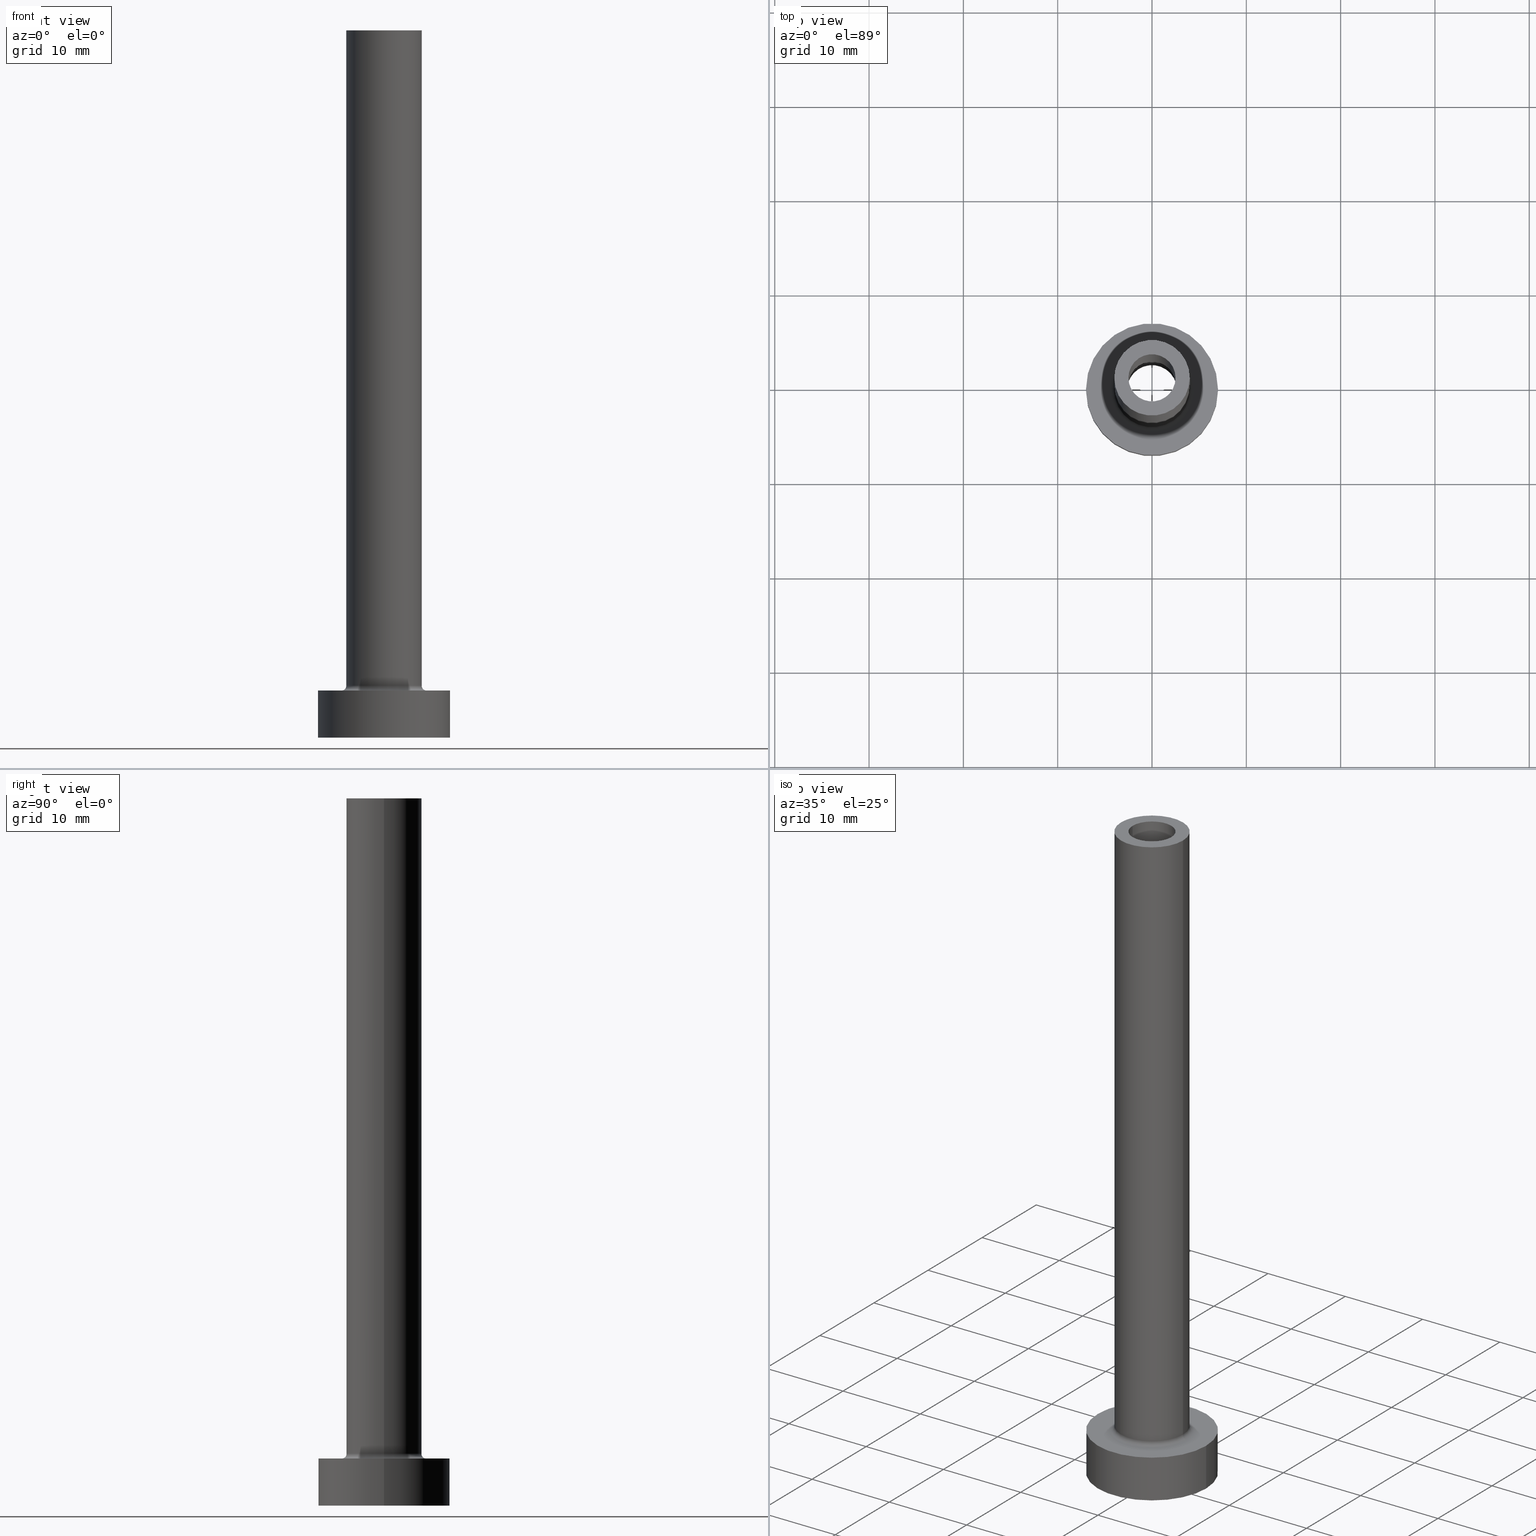
[diagram: canonical four-view strip — front | top / right | iso, engineering-drawing reading convention]
A machine part, canonical four-view strip (front | top / right | iso — engineering-drawing reading convention). The complete STEP part file that produces these views, byte-faithful:
ISO-10303-21;
HEADER;
FILE_DESCRIPTION (( 'STEP AP203' ),
    '1' );
FILE_NAME ('2fdc.STEP',
    '2023-02-13T10:14:26',
    ( '' ),
    ( '' ),
    'SwSTEP 2.0',
    'SolidWorks 2019',
    '' );
FILE_SCHEMA (( 'CONFIG_CONTROL_DESIGN' ));
ENDSEC;

DATA;
#1 = APPROVAL_DATE_TIME ( #292, #445 ) ;
#2 = CARTESIAN_POINT ( 'NONE',  ( 4.000000000000000000, 4.898587196589412829E-16, 75.00000000000001421 ) ) ;
#3 = CARTESIAN_POINT ( 'NONE',  ( 0.000000000000000000, 0.000000000000000000, 0.000000000000000000 ) ) ;
#4 = DIRECTION ( 'NONE',  ( -0.000000000000000000, -0.000000000000000000, -1.000000000000000000 ) ) ;
#5 = DIRECTION ( 'NONE',  ( 0.000000000000000000, 0.000000000000000000, 1.000000000000000000 ) ) ;
#6 = VECTOR ( 'NONE', #14, 1000.000000000000000 ) ;
#7 = APPROVAL_ROLE ( '' ) ;
#8 = ORIENTED_EDGE ( 'NONE', *, *, #117, .F. ) ;
#9 = CIRCLE ( 'NONE', #282, 2.649999999999999911 ) ;
#10 = CYLINDRICAL_SURFACE ( 'NONE', #87, 2.500000000000000000 ) ;
#11 = DIRECTION ( 'NONE',  ( 1.000000000000000000, 0.000000000000000000, -0.000000000000000000 ) ) ;
#12 = ORIENTED_EDGE ( 'NONE', *, *, #212, .F. ) ;
#13 = DIRECTION ( 'NONE',  ( 1.000000000000000000, 0.000000000000000000, 0.000000000000000000 ) ) ;
#14 = DIRECTION ( 'NONE',  ( -0.000000000000000000, -0.000000000000000000, -1.000000000000000000 ) ) ;
#15 = EDGE_LOOP ( 'NONE', ( #174, #214, #344, #30 ) ) ;
#16 = DATE_AND_TIME ( #101, #386 ) ;
#17 = EDGE_CURVE ( 'NONE', #210, #318, #207, .T. ) ;
#18 = AXIS2_PLACEMENT_3D ( 'NONE', #43, #296, #85 ) ;
#19 = DIRECTION ( 'NONE',  ( 1.000000000000000000, 0.000000000000000000, 0.000000000000000000 ) ) ;
#20 = ORIENTED_EDGE ( 'NONE', *, *, #270, .F. ) ;
#21 = PERSON_AND_ORGANIZATION ( #436, #255 ) ;
#22 = DIRECTION ( 'NONE',  ( 0.000000000000000000, 0.000000000000000000, -1.000000000000000000 ) ) ;
#23 = ORIENTED_EDGE ( 'NONE', *, *, #247, .T. ) ;
#24 = DATE_AND_TIME ( #381, #382 ) ;
#25 = CIRCLE ( 'NONE', #347, 0.5000000000000004441 ) ;
#26 = CIRCLE ( 'NONE', #73, 2.649999999999999911 ) ;
#27 = CARTESIAN_POINT ( 'NONE',  ( 0.000000000000000000, 0.000000000000000000, 5.500000000000005329 ) ) ;
#28 = ORIENTED_EDGE ( 'NONE', *, *, #183, .T. ) ;
#29 = LINE ( 'NONE', #424, #334 ) ;
#30 = ORIENTED_EDGE ( 'NONE', *, *, #257, .F. ) ;
#31 = EDGE_CURVE ( 'NONE', #287, #146, #232, .T. ) ;
#32 = CARTESIAN_POINT ( 'NONE',  ( 0.000000000000000000, 0.000000000000000000, 75.00000000000001421 ) ) ;
#33 = ADVANCED_FACE ( 'NONE', ( #94 ), #60, .T. ) ;
#34 = DIRECTION ( 'NONE',  ( -1.000000000000000000, 0.000000000000000000, 0.000000000000000000 ) ) ;
#35 = CALENDAR_DATE ( 2023, 13, 2 ) ;
#36 = CARTESIAN_POINT ( 'NONE',  ( 4.000000000000000000, 4.898587196589412829E-16, 5.500000000000005329 ) ) ;
#37 = DIRECTION ( 'NONE',  ( 1.000000000000000000, 0.000000000000000000, 0.000000000000000000 ) ) ;
#38 = CIRCLE ( 'NONE', #180, 2.649999999999999911 ) ;
#39 = DIRECTION ( 'NONE',  ( 0.000000000000000000, 0.000000000000000000, 1.000000000000000000 ) ) ;
#40 = DIRECTION ( 'NONE',  ( 1.000000000000000000, 0.000000000000000000, 0.000000000000000000 ) ) ;
#41 = DIRECTION ( 'NONE',  ( 1.000000000000000000, 0.000000000000000000, 0.000000000000000000 ) ) ;
#42 = CARTESIAN_POINT ( 'NONE',  ( 0.000000000000000000, 0.000000000000000000, 0.000000000000000000 ) ) ;
#43 = CARTESIAN_POINT ( 'NONE',  ( 0.000000000000000000, 0.000000000000000000, 5.000000000000000000 ) ) ;
#44 = CIRCLE ( 'NONE', #223, 4.000000000000000000 ) ;
#45 = EDGE_LOOP ( 'NONE', ( #294, #415 ) ) ;
#46 = DIRECTION ( 'NONE',  ( 1.000000000000000000, 0.000000000000000000, -0.000000000000000000 ) ) ;
#47 = APPROVAL_PERSON_ORGANIZATION ( #231, #182, #194 ) ;
#48 = SECURITY_CLASSIFICATION ( '', '', #428 ) ;
#49 = ORIENTED_EDGE ( 'NONE', *, *, #420, .F. ) ;
#50 = DIRECTION ( 'NONE',  ( 0.000000000000000000, 0.000000000000000000, 1.000000000000000000 ) ) ;
#51 = CC_DESIGN_PERSON_AND_ORGANIZATION_ASSIGNMENT ( #21, #345, ( #443 ) ) ;
#52 = AXIS2_PLACEMENT_3D ( 'NONE', #285, #425, #111 ) ;
#53 = LINE ( 'NONE', #452, #204 ) ;
#54 = VERTEX_POINT ( 'NONE', #58 ) ;
#55 = ADVANCED_BREP_SHAPE_REPRESENTATION ( '2fdc', ( #350, #115 ), #261 ) ;
#56 = TOROIDAL_SURFACE ( 'NONE', #135, 4.500000000000000888, 0.5000000000000000000 ) ;
#57 = DATE_AND_TIME ( #59, #175 ) ;
#58 = CARTESIAN_POINT ( 'NONE',  ( -7.000000000000000000, 0.000000000000000000, 5.000000000000000000 ) ) ;
#59 = CALENDAR_DATE ( 2023, 13, 2 ) ;
#60 = CYLINDRICAL_SURFACE ( 'NONE', #280, 7.000000000000000000 ) ;
#61 = DIRECTION ( 'NONE',  ( 0.000000000000000000, 0.000000000000000000, 1.000000000000000000 ) ) ;
#62 = DATE_TIME_ROLE ( 'creation_date' ) ;
#63 = EDGE_CURVE ( 'NONE', #304, #342, #195, .T. ) ;
#64 = EDGE_CURVE ( 'NONE', #447, #205, #103, .T. ) ;
#65 = AXIS2_PLACEMENT_3D ( 'NONE', #104, #69, #147 ) ;
#66 = VERTEX_POINT ( 'NONE', #387 ) ;
#67 = CARTESIAN_POINT ( 'NONE',  ( 0.000000000000000000, 0.000000000000000000, 5.000000000000000000 ) ) ;
#68 = ORIENTED_EDGE ( 'NONE', *, *, #251, .F. ) ;
#69 = DIRECTION ( 'NONE',  ( 0.000000000000000000, 0.000000000000000000, 1.000000000000000000 ) ) ;
#70 = AXIS2_PLACEMENT_3D ( 'NONE', #67, #109, #206 ) ;
#71 = ORIENTED_EDGE ( 'NONE', *, *, #402, .T. ) ;
#72 = CARTESIAN_POINT ( 'NONE',  ( -7.000000000000000000, 0.000000000000000000, 0.000000000000000000 ) ) ;
#73 = AXIS2_PLACEMENT_3D ( 'NONE', #3, #4, #79 ) ;
#74 = AXIS2_PLACEMENT_3D ( 'NONE', #80, #188, #40 ) ;
#75 = CARTESIAN_POINT ( 'NONE',  ( -2.649999999999999911, 0.000000000000000000, 37.49533188057742450 ) ) ;
#76 = ORIENTED_EDGE ( 'NONE', *, *, #370, .F. ) ;
#77 = CARTESIAN_POINT ( 'NONE',  ( 0.000000000000000000, 0.000000000000000000, 75.00000000000001421 ) ) ;
#78 = CARTESIAN_POINT ( 'NONE',  ( 7.000000000000000000, 8.572527594031473190E-16, 5.000000000000000000 ) ) ;
#79 = DIRECTION ( 'NONE',  ( 1.000000000000000000, 0.000000000000000000, 0.000000000000000000 ) ) ;
#80 = CARTESIAN_POINT ( 'NONE',  ( 0.000000000000000000, 0.000000000000000000, 5.000000000000000000 ) ) ;
#81 = AXIS2_PLACEMENT_3D ( 'NONE', #32, #404, #299 ) ;
#82 = LOCAL_TIME ( 11, 14, 26.00000000000000000, #124 ) ;
#83 = DIRECTION ( 'NONE',  ( -1.000000000000000000, 0.000000000000000000, 0.000000000000000000 ) ) ;
#84 = EDGE_CURVE ( 'NONE', #356, #193, #330, .T. ) ;
#85 = DIRECTION ( 'NONE',  ( 1.000000000000000000, 0.000000000000000000, 0.000000000000000000 ) ) ;
#86 = CARTESIAN_POINT ( 'NONE',  ( 0.000000000000000000, 0.000000000000000000, 5.000000000000000000 ) ) ;
#87 = AXIS2_PLACEMENT_3D ( 'NONE', #77, #365, #34 ) ;
#88 = DIRECTION ( 'NONE',  ( 0.000000000000000000, 0.000000000000000000, 1.000000000000000000 ) ) ;
#89 = ORIENTED_EDGE ( 'NONE', *, *, #273, .F. ) ;
#90 = PRODUCT_DEFINITION_FORMATION_WITH_SPECIFIED_SOURCE ( 'LIBOVOLN�', '', #443, .NOT_KNOWN. ) ;
#91 = EDGE_LOOP ( 'NONE', ( #113, #230, #128, #411 ) ) ;
#92 = APPROVAL_STATUS ( 'not_yet_approved' ) ;
#93 = CARTESIAN_POINT ( 'NONE',  ( 4.500000000000000888, 0.000000000000000000, 5.000000000000002665 ) ) ;
#94 = FACE_OUTER_BOUND ( 'NONE', #426, .T. ) ;
#95 = CARTESIAN_POINT ( 'NONE',  ( 0.000000000000000000, 0.000000000000000000, 5.000000000000000000 ) ) ;
#96 = COORDINATED_UNIVERSAL_TIME_OFFSET ( 1, 0, .AHEAD. ) ;
#97 = DIRECTION ( 'NONE',  ( -1.000000000000000000, 0.000000000000000000, 0.000000000000000000 ) ) ;
#98 = EDGE_CURVE ( 'NONE', #318, #210, #187, .T. ) ;
#99 = AXIS2_PLACEMENT_3D ( 'NONE', #181, #22, #269 ) ;
#100 = EDGE_LOOP ( 'NONE', ( #348, #71 ) ) ;
#101 = CALENDAR_DATE ( 2023, 13, 2 ) ;
#102 = ADVANCED_FACE ( 'NONE', ( #250, #392 ), #208, .T. ) ;
#103 = LINE ( 'NONE', #75, #275 ) ;
#104 = CARTESIAN_POINT ( 'NONE',  ( 0.000000000000000000, 0.000000000000000000, 0.000000000000000000 ) ) ;
#105 = ORIENTED_EDGE ( 'NONE', *, *, #129, .F. ) ;
#106 = CC_DESIGN_DATE_AND_TIME_ASSIGNMENT ( #265, #224, ( #48 ) ) ;
#107 = AXIS2_PLACEMENT_3D ( 'NONE', #235, #379, #391 ) ;
#108 = EDGE_CURVE ( 'NONE', #146, #239, #44, .T. ) ;
#109 = DIRECTION ( 'NONE',  ( -0.000000000000000000, -0.000000000000000000, -1.000000000000000000 ) ) ;
#110 = DIRECTION ( 'NONE',  ( 0.000000000000000000, 0.000000000000000000, -1.000000000000000000 ) ) ;
#111 = DIRECTION ( 'NONE',  ( 1.000000000000000000, 0.000000000000000000, 0.000000000000000000 ) ) ;
#112 = ORIENTED_EDGE ( 'NONE', *, *, #63, .F. ) ;
#113 = ORIENTED_EDGE ( 'NONE', *, *, #402, .F. ) ;
#114 = DIRECTION ( 'NONE',  ( 0.000000000000000000, 0.000000000000000000, 1.000000000000000000 ) ) ;
#115 = AXIS2_PLACEMENT_3D ( 'NONE', #410, #50, #19 ) ;
#116 = ADVANCED_FACE ( 'NONE', ( #176 ), #10, .F. ) ;
#117 = EDGE_CURVE ( 'NONE', #54, #236, #244, .T. ) ;
#118 = DIRECTION ( 'NONE',  ( 0.000000000000000000, 0.000000000000000000, 1.000000000000000000 ) ) ;
#119 = DIRECTION ( 'NONE',  ( 1.224646799147353207E-16, 1.000000000000000000, -0.000000000000000000 ) ) ;
#120 = COORDINATED_UNIVERSAL_TIME_OFFSET ( 1, 0, .AHEAD. ) ;
#121 = CIRCLE ( 'NONE', #140, 7.000000000000000000 ) ;
#122 = FACE_OUTER_BOUND ( 'NONE', #422, .T. ) ;
#123 =( NAMED_UNIT ( * ) SI_UNIT ( $, .STERADIAN. ) SOLID_ANGLE_UNIT ( ) );
#124 = COORDINATED_UNIVERSAL_TIME_OFFSET ( 1, 0, .AHEAD. ) ;
#125 = FACE_OUTER_BOUND ( 'NONE', #91, .T. ) ;
#126 = DIRECTION ( 'NONE',  ( 1.000000000000000000, 0.000000000000000000, -0.000000000000000000 ) ) ;
#127 = CARTESIAN_POINT ( 'NONE',  ( 7.000000000000000000, 8.572527594031473190E-16, 0.000000000000000000 ) ) ;
#128 = ORIENTED_EDGE ( 'NONE', *, *, #358, .T. ) ;
#129 = EDGE_CURVE ( 'NONE', #342, #210, #329, .T. ) ;
#130 = APPLICATION_PROTOCOL_DEFINITION ( 'international standard', 'config_control_design', 1994, #238 ) ;
#131 = CARTESIAN_POINT ( 'NONE',  ( 0.000000000000000000, 0.000000000000000000, 30.00000000000001421 ) ) ;
#132 = APPROVAL_ROLE ( '' ) ;
#133 = EDGE_CURVE ( 'NONE', #239, #193, #25, .T. ) ;
#134 = ADVANCED_FACE ( 'NONE', ( #434 ), #405, .F. ) ;
#135 = AXIS2_PLACEMENT_3D ( 'NONE', #173, #139, #283 ) ;
#136 = DIRECTION ( 'NONE',  ( -1.000000000000000000, 0.000000000000000000, 0.000000000000000000 ) ) ;
#137 = ORIENTED_EDGE ( 'NONE', *, *, #421, .F. ) ;
#138 = DIRECTION ( 'NONE',  ( 0.000000000000000000, 0.000000000000000000, -1.000000000000000000 ) ) ;
#139 = DIRECTION ( 'NONE',  ( 0.000000000000000000, 0.000000000000000000, 1.000000000000000000 ) ) ;
#140 = AXIS2_PLACEMENT_3D ( 'NONE', #211, #39, #221 ) ;
#141 = EDGE_LOOP ( 'NONE', ( #76, #378, #171, #390 ) ) ;
#142 = UNCERTAINTY_MEASURE_WITH_UNIT (LENGTH_MEASURE( 1.000000000000000082E-05 ), #401, 'distance_accuracy_value', 'NONE');
#143 = EDGE_LOOP ( 'NONE', ( #28, #302, #389, #314 ) ) ;
#144 = FACE_OUTER_BOUND ( 'NONE', #442, .T. ) ;
#145 = EDGE_LOOP ( 'NONE', ( #191, #263 ) ) ;
#146 = VERTEX_POINT ( 'NONE', #290 ) ;
#147 = DIRECTION ( 'NONE',  ( 1.000000000000000000, 0.000000000000000000, -0.000000000000000000 ) ) ;
#148 = EDGE_LOOP ( 'NONE', ( #248, #427, #268, #149 ) ) ;
#149 = ORIENTED_EDGE ( 'NONE', *, *, #84, .F. ) ;
#150 = DIRECTION ( 'NONE',  ( 0.000000000000000000, 0.000000000000000000, -1.000000000000000000 ) ) ;
#151 = CIRCLE ( 'NONE', #423, 2.500000000000000000 ) ;
#152 = CARTESIAN_POINT ( 'NONE',  ( 0.000000000000000000, 0.000000000000000000, 75.00000000000001421 ) ) ;
#153 = DIRECTION ( 'NONE',  ( -0.000000000000000000, -0.000000000000000000, -1.000000000000000000 ) ) ;
#154 = CARTESIAN_POINT ( 'NONE',  ( 4.500000000000000888, 0.000000000000000000, 5.500000000000005329 ) ) ;
#155 = ADVANCED_FACE ( 'NONE', ( #259 ), #398, .F. ) ;
#156 = DIRECTION ( 'NONE',  ( 0.000000000000000000, 0.000000000000000000, 1.000000000000000000 ) ) ;
#157 = PRODUCT_DEFINITION_SHAPE ( 'NONE', 'NONE',  #271 ) ;
#158 = DIRECTION ( 'NONE',  ( 0.000000000000000000, 0.000000000000000000, 1.000000000000000000 ) ) ;
#159 = DIRECTION ( 'NONE',  ( 1.000000000000000000, 0.000000000000000000, 0.000000000000000000 ) ) ;
#160 = CARTESIAN_POINT ( 'NONE',  ( -2.500000000000000000, 0.000000000000000000, 30.00000000000001421 ) ) ;
#161 = EDGE_LOOP ( 'NONE', ( #409, #23, #200, #397 ) ) ;
#162 = PERSON_AND_ORGANIZATION_ROLE ( 'creator' ) ;
#163 = CC_DESIGN_APPROVAL ( #182, ( #90 ) ) ;
#164 = APPROVAL_DATE_TIME ( #24, #351 ) ;
#165 = ORIENTED_EDGE ( 'NONE', *, *, #298, .T. ) ;
#166 = COORDINATED_UNIVERSAL_TIME_OFFSET ( 1, 0, .AHEAD. ) ;
#167 = ORIENTED_EDGE ( 'NONE', *, *, #183, .F. ) ;
#168 = CC_DESIGN_APPROVAL ( #351, ( #271 ) ) ;
#169 = DIRECTION ( 'NONE',  ( 1.000000000000000000, 0.000000000000000000, 0.000000000000000000 ) ) ;
#170 = PERSON_AND_ORGANIZATION_ROLE ( 'classification_officer' ) ;
#171 = ORIENTED_EDGE ( 'NONE', *, *, #64, .T. ) ;
#172 = AXIS2_PLACEMENT_3D ( 'NONE', #313, #241, #383 ) ;
#173 = CARTESIAN_POINT ( 'NONE',  ( 0.000000000000000000, 0.000000000000000000, 5.500000000000005329 ) ) ;
#174 = ORIENTED_EDGE ( 'NONE', *, *, #63, .T. ) ;
#175 = LOCAL_TIME ( 11, 14, 26.00000000000000000, #337 ) ;
#176 = FACE_OUTER_BOUND ( 'NONE', #438, .T. ) ;
#177 = EDGE_LOOP ( 'NONE', ( #49, #89 ) ) ;
#178 = CARTESIAN_POINT ( 'NONE',  ( -4.500000000000000888, 5.510910596163089556E-16, 5.500000000000005329 ) ) ;
#179 = DIRECTION ( 'NONE',  ( 1.000000000000000000, 0.000000000000000000, 0.000000000000000000 ) ) ;
#180 = AXIS2_PLACEMENT_3D ( 'NONE', #311, #308, #13 ) ;
#181 = CARTESIAN_POINT ( 'NONE',  ( 0.000000000000000000, 0.000000000000000000, 37.49533188057742450 ) ) ;
#182 = APPROVAL ( #92, 'NEUR�EN�' ) ;
#183 = EDGE_CURVE ( 'NONE', #447, #253, #38, .T. ) ;
#184 = LINE ( 'NONE', #327, #435 ) ;
#185 = CARTESIAN_POINT ( 'NONE',  ( 0.000000000000000000, 0.000000000000000000, 5.000000000000000000 ) ) ;
#186 = CARTESIAN_POINT ( 'NONE',  ( 0.000000000000000000, 0.000000000000000000, 0.000000000000000000 ) ) ;
#187 = CIRCLE ( 'NONE', #52, 2.500000000000000000 ) ;
#188 = DIRECTION ( 'NONE',  ( 0.000000000000000000, 0.000000000000000000, 1.000000000000000000 ) ) ;
#189 = AXIS2_PLACEMENT_3D ( 'NONE', #373, #156, #371 ) ;
#190 = PLANE ( 'NONE',  #198 ) ;
#191 = ORIENTED_EDGE ( 'NONE', *, *, #98, .T. ) ;
#192 = FACE_OUTER_BOUND ( 'NONE', #143, .T. ) ;
#193 = VERTEX_POINT ( 'NONE', #93 ) ;
#194 = APPROVAL_ROLE ( '' ) ;
#195 = CIRCLE ( 'NONE', #172, 2.500000000000000000 ) ;
#196 = DIRECTION ( 'NONE',  ( -0.000000000000000000, -0.000000000000000000, -1.000000000000000000 ) ) ;
#197 = VERTEX_POINT ( 'NONE', #127 ) ;
#198 = AXIS2_PLACEMENT_3D ( 'NONE', #131, #414, #11 ) ;
#199 = DIRECTION ( 'NONE',  ( -0.000000000000000000, -0.000000000000000000, -1.000000000000000000 ) ) ;
#200 = ORIENTED_EDGE ( 'NONE', *, *, #279, .F. ) ;
#201 = ORIENTED_EDGE ( 'NONE', *, *, #396, .F. ) ;
#202 = PERSON_AND_ORGANIZATION_ROLE ( 'creator' ) ;
#203 = APPROVAL_DATE_TIME ( #16, #182 ) ;
#204 = VECTOR ( 'NONE', #196, 1000.000000000000000 ) ;
#205 = VERTEX_POINT ( 'NONE', #388 ) ;
#206 = DIRECTION ( 'NONE',  ( 1.000000000000000000, 0.000000000000000000, 0.000000000000000000 ) ) ;
#207 = CIRCLE ( 'NONE', #301, 2.500000000000000000 ) ;
#208 = PLANE ( 'NONE',  #449 ) ;
#209 = AXIS2_PLACEMENT_3D ( 'NONE', #217, #114, #367 ) ;
#210 = VERTEX_POINT ( 'NONE', #286 ) ;
#211 = CARTESIAN_POINT ( 'NONE',  ( 0.000000000000000000, 0.000000000000000000, 0.000000000000000000 ) ) ;
#212 = EDGE_CURVE ( 'NONE', #342, #304, #151, .T. ) ;
#213 = CARTESIAN_POINT ( 'NONE',  ( 2.500000000000000000, 3.061616997868382648E-16, 75.00000000000001421 ) ) ;
#214 = ORIENTED_EDGE ( 'NONE', *, *, #129, .T. ) ;
#215 = DIRECTION ( 'NONE',  ( -0.000000000000000000, -0.000000000000000000, -1.000000000000000000 ) ) ;
#216 = CARTESIAN_POINT ( 'NONE',  ( 0.000000000000000000, 0.000000000000000000, 5.500000000000005329 ) ) ;
#217 = CARTESIAN_POINT ( 'NONE',  ( 0.000000000000000000, 0.000000000000000000, 75.00000000000001421 ) ) ;
#218 = CIRCLE ( 'NONE', #209, 4.000000000000000000 ) ;
#219 = PERSON_AND_ORGANIZATION ( #436, #255 ) ;
#220 = ORIENTED_EDGE ( 'NONE', *, *, #234, .T. ) ;
#221 = DIRECTION ( 'NONE',  ( 1.000000000000000000, 0.000000000000000000, 0.000000000000000000 ) ) ;
#222 = APPROVAL_STATUS ( 'not_yet_approved' ) ;
#223 = AXIS2_PLACEMENT_3D ( 'NONE', #372, #368, #41 ) ;
#224 = DATE_TIME_ROLE ( 'classification_date' ) ;
#225 = CARTESIAN_POINT ( 'NONE',  ( -2.500000000000000000, 0.000000000000000000, 75.00000000000001421 ) ) ;
#226 = VERTEX_POINT ( 'NONE', #2 ) ;
#227 = VECTOR ( 'NONE', #361, 1000.000000000000000 ) ;
#228 = AXIS2_PLACEMENT_3D ( 'NONE', #95, #267, #407 ) ;
#229 = FACE_OUTER_BOUND ( 'NONE', #338, .T. ) ;
#230 = ORIENTED_EDGE ( 'NONE', *, *, #254, .T. ) ;
#231 = PERSON_AND_ORGANIZATION ( #436, #255 ) ;
#232 = LINE ( 'NONE', #412, #6 ) ;
#233 = CC_DESIGN_PERSON_AND_ORGANIZATION_ASSIGNMENT ( #307, #162, ( #90 ) ) ;
#234 = EDGE_CURVE ( 'NONE', #197, #354, #303, .T. ) ;
#235 = CARTESIAN_POINT ( 'NONE',  ( 0.000000000000000000, 0.000000000000000000, 37.49533188057742450 ) ) ;
#236 = VERTEX_POINT ( 'NONE', #78 ) ;
#237 = CIRCLE ( 'NONE', #189, 4.000000000000000000 ) ;
#238 = APPLICATION_CONTEXT ( 'configuration controlled 3d designs of mechanical parts and assemblies' ) ;
#239 = VERTEX_POINT ( 'NONE', #36 ) ;
#240 = PERSON_AND_ORGANIZATION ( #436, #255 ) ;
#241 = DIRECTION ( 'NONE',  ( 0.000000000000000000, 0.000000000000000000, 1.000000000000000000 ) ) ;
#242 = CC_DESIGN_PERSON_AND_ORGANIZATION_ASSIGNMENT ( #317, #170, ( #48 ) ) ;
#243 = DIRECTION ( 'NONE',  ( 1.000000000000000000, 0.000000000000000000, 0.000000000000000000 ) ) ;
#244 = CIRCLE ( 'NONE', #288, 7.000000000000000000 ) ;
#245 = CIRCLE ( 'NONE', #460, 2.649999999999999911 ) ;
#246 = FACE_BOUND ( 'NONE', #177, .T. ) ;
#247 = EDGE_CURVE ( 'NONE', #146, #356, #441, .T. ) ;
#248 = ORIENTED_EDGE ( 'NONE', *, *, #247, .F. ) ;
#249 = CARTESIAN_POINT ( 'NONE',  ( 0.000000000000000000, 0.000000000000000000, 75.00000000000001421 ) ) ;
#250 = FACE_BOUND ( 'NONE', #416, .T. ) ;
#251 = EDGE_CURVE ( 'NONE', #253, #447, #245, .T. ) ;
#252 = PLANE ( 'NONE',  #65 ) ;
#253 = VERTEX_POINT ( 'NONE', #258 ) ;
#254 = EDGE_CURVE ( 'NONE', #226, #239, #359, .T. ) ;
#255 = ORGANIZATION ( 'NEUR�EN�', 'NEUR�EN�', '' ) ;
#256 = LINE ( 'NONE', #295, #394 ) ;
#257 = EDGE_CURVE ( 'NONE', #304, #318, #184, .T. ) ;
#258 = CARTESIAN_POINT ( 'NONE',  ( 2.649999999999999911, 3.245314017740485469E-16, 30.00000000000001421 ) ) ;
#259 = FACE_OUTER_BOUND ( 'NONE', #141, .T. ) ;
#260 = DIRECTION ( 'NONE',  ( 0.000000000000000000, 0.000000000000000000, -1.000000000000000000 ) ) ;
#261 =( GEOMETRIC_REPRESENTATION_CONTEXT ( 3 ) GLOBAL_UNCERTAINTY_ASSIGNED_CONTEXT ( ( #142 ) ) GLOBAL_UNIT_ASSIGNED_CONTEXT ( ( #401, #433, #123 ) ) REPRESENTATION_CONTEXT ( 'NONE', 'WORKASPACE' ) );
#262 = LOCAL_TIME ( 11, 14, 26.00000000000000000, #120 ) ;
#263 = ORIENTED_EDGE ( 'NONE', *, *, #17, .T. ) ;
#264 = CYLINDRICAL_SURFACE ( 'NONE', #81, 4.000000000000000000 ) ;
#265 = DATE_AND_TIME ( #363, #82 ) ;
#266 = CYLINDRICAL_SURFACE ( 'NONE', #375, 4.000000000000000000 ) ;
#267 = DIRECTION ( 'NONE',  ( -0.000000000000000000, -0.000000000000000000, -1.000000000000000000 ) ) ;
#268 = ORIENTED_EDGE ( 'NONE', *, *, #133, .T. ) ;
#269 = DIRECTION ( 'NONE',  ( -1.000000000000000000, 0.000000000000000000, 0.000000000000000000 ) ) ;
#270 = EDGE_CURVE ( 'NONE', #287, #226, #237, .T. ) ;
#271 = PRODUCT_DEFINITION ( 'NEZN�M�', '', #90, #456 ) ;
#272 = ORIENTED_EDGE ( 'NONE', *, *, #458, .T. ) ;
#273 = EDGE_CURVE ( 'NONE', #66, #205, #26, .T. ) ;
#274 = ORIENTED_EDGE ( 'NONE', *, *, #257, .T. ) ;
#275 = VECTOR ( 'NONE', #138, 1000.000000000000000 ) ;
#276 = ORIENTED_EDGE ( 'NONE', *, *, #31, .T. ) ;
#277 = AXIS2_PLACEMENT_3D ( 'NONE', #216, #118, #37 ) ;
#278 = AXIS2_PLACEMENT_3D ( 'NONE', #27, #61, #169 ) ;
#279 = EDGE_CURVE ( 'NONE', #193, #356, #312, .T. ) ;
#280 = AXIS2_PLACEMENT_3D ( 'NONE', #448, #440, #97 ) ;
#281 = ADVANCED_FACE ( 'NONE', ( #122 ), #264, .T. ) ;
#282 = AXIS2_PLACEMENT_3D ( 'NONE', #186, #153, #403 ) ;
#283 = DIRECTION ( 'NONE',  ( 1.000000000000000000, 0.000000000000000000, 0.000000000000000000 ) ) ;
#284 = ADVANCED_FACE ( 'NONE', ( #125 ), #266, .T. ) ;
#285 = CARTESIAN_POINT ( 'NONE',  ( 0.000000000000000000, 0.000000000000000000, 30.00000000000001421 ) ) ;
#286 = CARTESIAN_POINT ( 'NONE',  ( 2.500000000000000000, 3.061616997868382648E-16, 30.00000000000001421 ) ) ;
#287 = VERTEX_POINT ( 'NONE', #309 ) ;
#288 = AXIS2_PLACEMENT_3D ( 'NONE', #185, #5, #332 ) ;
#289 = EDGE_LOOP ( 'NONE', ( #167, #68 ) ) ;
#290 = CARTESIAN_POINT ( 'NONE',  ( -4.000000000000000000, 0.000000000000000000, 5.500000000000005329 ) ) ;
#291 = FACE_OUTER_BOUND ( 'NONE', #300, .T. ) ;
#292 = DATE_AND_TIME ( #35, #262 ) ;
#293 = DIRECTION ( 'NONE',  ( 0.000000000000000000, 0.000000000000000000, -1.000000000000000000 ) ) ;
#294 = ORIENTED_EDGE ( 'NONE', *, *, #279, .T. ) ;
#295 = CARTESIAN_POINT ( 'NONE',  ( -7.000000000000000000, 0.000000000000000000, 5.000000000000000000 ) ) ;
#296 = DIRECTION ( 'NONE',  ( -0.000000000000000000, -0.000000000000000000, -1.000000000000000000 ) ) ;
#297 = DIRECTION ( 'NONE',  ( 0.000000000000000000, 0.000000000000000000, 1.000000000000000000 ) ) ;
#298 = EDGE_CURVE ( 'NONE', #236, #197, #53, .T. ) ;
#299 = DIRECTION ( 'NONE',  ( -1.000000000000000000, 0.000000000000000000, 0.000000000000000000 ) ) ;
#300 = EDGE_LOOP ( 'NONE', ( #457, #272 ) ) ;
#301 = AXIS2_PLACEMENT_3D ( 'NONE', #376, #88, #159 ) ;
#302 = ORIENTED_EDGE ( 'NONE', *, *, #370, .T. ) ;
#303 = CIRCLE ( 'NONE', #355, 7.000000000000000000 ) ;
#304 = VERTEX_POINT ( 'NONE', #225 ) ;
#305 = FACE_OUTER_BOUND ( 'NONE', #289, .T. ) ;
#306 = ORIENTED_EDGE ( 'NONE', *, *, #212, .T. ) ;
#307 = PERSON_AND_ORGANIZATION ( #436, #255 ) ;
#308 = DIRECTION ( 'NONE',  ( 0.000000000000000000, 0.000000000000000000, 1.000000000000000000 ) ) ;
#309 = CARTESIAN_POINT ( 'NONE',  ( -4.000000000000000000, 0.000000000000000000, 75.00000000000001421 ) ) ;
#310 = ORIENTED_EDGE ( 'NONE', *, *, #421, .T. ) ;
#311 = CARTESIAN_POINT ( 'NONE',  ( 0.000000000000000000, 0.000000000000000000, 30.00000000000001421 ) ) ;
#312 = CIRCLE ( 'NONE', #18, 4.500000000000000888 ) ;
#313 = CARTESIAN_POINT ( 'NONE',  ( 0.000000000000000000, 0.000000000000000000, 75.00000000000001421 ) ) ;
#314 = ORIENTED_EDGE ( 'NONE', *, *, #64, .F. ) ;
#315 = FACE_OUTER_BOUND ( 'NONE', #161, .T. ) ;
#316 = ADVANCED_FACE ( 'NONE', ( #446, #305 ), #190, .F. ) ;
#317 = PERSON_AND_ORGANIZATION ( #436, #255 ) ;
#318 = VERTEX_POINT ( 'NONE', #160 ) ;
#319 = CIRCLE ( 'NONE', #278, 4.000000000000000000 ) ;
#320 = ORIENTED_EDGE ( 'NONE', *, *, #234, .F. ) ;
#321 = ORIENTED_EDGE ( 'NONE', *, *, #254, .F. ) ;
#322 = CC_DESIGN_PERSON_AND_ORGANIZATION_ASSIGNMENT ( #240, #346, ( #90 ) ) ;
#323 = DIRECTION ( 'NONE',  ( 0.000000000000000000, 0.000000000000000000, 1.000000000000000000 ) ) ;
#324 = DIRECTION ( 'NONE',  ( 0.000000000000000000, -1.000000000000000000, 0.000000000000000000 ) ) ;
#325 = CYLINDRICAL_SURFACE ( 'NONE', #417, 2.500000000000000000 ) ;
#326 = CC_DESIGN_SECURITY_CLASSIFICATION ( #48, ( #90 ) ) ;
#327 = CARTESIAN_POINT ( 'NONE',  ( -2.500000000000000000, 0.000000000000000000, 75.00000000000001421 ) ) ;
#328 = ADVANCED_FACE ( 'NONE', ( #229 ), #437, .T. ) ;
#329 = LINE ( 'NONE', #213, #227 ) ;
#330 = CIRCLE ( 'NONE', #70, 4.500000000000000888 ) ;
#331 = ADVANCED_FACE ( 'NONE', ( #192 ), #336, .F. ) ;
#332 = DIRECTION ( 'NONE',  ( 1.000000000000000000, 0.000000000000000000, 0.000000000000000000 ) ) ;
#333 = FACE_BOUND ( 'NONE', #45, .T. ) ;
#334 = VECTOR ( 'NONE', #110, 1000.000000000000000 ) ;
#335 = DIRECTION ( 'NONE',  ( -0.000000000000000000, -0.000000000000000000, -1.000000000000000000 ) ) ;
#336 = CYLINDRICAL_SURFACE ( 'NONE', #107, 2.649999999999999911 ) ;
#337 = COORDINATED_UNIVERSAL_TIME_OFFSET ( 1, 0, .AHEAD. ) ;
#338 = EDGE_LOOP ( 'NONE', ( #455, #165, #220, #201 ) ) ;
#339 = APPLICATION_PROTOCOL_DEFINITION ( 'international standard', 'config_control_design', 1994, #341 ) ;
#340 = AXIS2_PLACEMENT_3D ( 'NONE', #86, #297, #126 ) ;
#341 = APPLICATION_CONTEXT ( 'configuration controlled 3d designs of mechanical parts and assemblies' ) ;
#342 = VERTEX_POINT ( 'NONE', #384 ) ;
#343 = MECHANICAL_CONTEXT ( 'NONE', #238, 'mechanical' ) ;
#344 = ORIENTED_EDGE ( 'NONE', *, *, #98, .F. ) ;
#345 = PERSON_AND_ORGANIZATION_ROLE ( 'design_owner' ) ;
#346 = PERSON_AND_ORGANIZATION_ROLE ( 'design_supplier' ) ;
#347 = AXIS2_PLACEMENT_3D ( 'NONE', #154, #324, #293 ) ;
#348 = ORIENTED_EDGE ( 'NONE', *, *, #270, .T. ) ;
#349 = AXIS2_PLACEMENT_3D ( 'NONE', #178, #119, #364 ) ;
#350 = MANIFOLD_SOLID_BREP ( 'Odebrat vysunut�m4', #413 ) ;
#351 = APPROVAL ( #439, 'NEUR�EN�' ) ;
#352 = ADVANCED_FACE ( 'NONE', ( #246, #144 ), #252, .F. ) ;
#353 = CARTESIAN_POINT ( 'NONE',  ( 0.000000000000000000, 0.000000000000000000, 75.00000000000001421 ) ) ;
#354 = VERTEX_POINT ( 'NONE', #72 ) ;
#355 = AXIS2_PLACEMENT_3D ( 'NONE', #42, #323, #429 ) ;
#356 = VERTEX_POINT ( 'NONE', #418 ) ;
#357 = ORIENTED_EDGE ( 'NONE', *, *, #396, .T. ) ;
#358 = EDGE_CURVE ( 'NONE', #239, #146, #319, .T. ) ;
#359 = LINE ( 'NONE', #400, #406 ) ;
#360 = ADVANCED_FACE ( 'NONE', ( #315 ), #56, .F. ) ;
#361 = DIRECTION ( 'NONE',  ( 0.000000000000000000, 0.000000000000000000, -1.000000000000000000 ) ) ;
#362 = FACE_OUTER_BOUND ( 'NONE', #15, .T. ) ;
#363 = CALENDAR_DATE ( 2023, 13, 2 ) ;
#364 = DIRECTION ( 'NONE',  ( -1.000000000000000000, 1.224646799147351482E-16, 0.000000000000000000 ) ) ;
#365 = DIRECTION ( 'NONE',  ( 0.000000000000000000, 0.000000000000000000, -1.000000000000000000 ) ) ;
#366 = APPROVAL_PERSON_ORGANIZATION ( #451, #351, #132 ) ;
#367 = DIRECTION ( 'NONE',  ( 1.000000000000000000, 0.000000000000000000, 0.000000000000000000 ) ) ;
#368 = DIRECTION ( 'NONE',  ( 0.000000000000000000, 0.000000000000000000, 1.000000000000000000 ) ) ;
#369 = PRODUCT_RELATED_PRODUCT_CATEGORY ( 'detail', '', ( #443 ) ) ;
#370 = EDGE_CURVE ( 'NONE', #253, #66, #29, .T. ) ;
#371 = DIRECTION ( 'NONE',  ( 1.000000000000000000, 0.000000000000000000, 0.000000000000000000 ) ) ;
#372 = CARTESIAN_POINT ( 'NONE',  ( 0.000000000000000000, 0.000000000000000000, 5.500000000000005329 ) ) ;
#373 = CARTESIAN_POINT ( 'NONE',  ( 0.000000000000000000, 0.000000000000000000, 75.00000000000001421 ) ) ;
#374 = ADVANCED_FACE ( 'NONE', ( #362 ), #325, .F. ) ;
#375 = AXIS2_PLACEMENT_3D ( 'NONE', #377, #199, #136 ) ;
#376 = CARTESIAN_POINT ( 'NONE',  ( 0.000000000000000000, 0.000000000000000000, 30.00000000000001421 ) ) ;
#377 = CARTESIAN_POINT ( 'NONE',  ( 0.000000000000000000, 0.000000000000000000, 75.00000000000001421 ) ) ;
#378 = ORIENTED_EDGE ( 'NONE', *, *, #251, .T. ) ;
#379 = DIRECTION ( 'NONE',  ( 0.000000000000000000, 0.000000000000000000, -1.000000000000000000 ) ) ;
#380 = ORIENTED_EDGE ( 'NONE', *, *, #17, .F. ) ;
#381 = CALENDAR_DATE ( 2023, 13, 2 ) ;
#382 = LOCAL_TIME ( 11, 14, 26.00000000000000000, #96 ) ;
#383 = DIRECTION ( 'NONE',  ( 1.000000000000000000, 0.000000000000000000, 0.000000000000000000 ) ) ;
#384 = CARTESIAN_POINT ( 'NONE',  ( 2.500000000000000000, 3.061616997868382648E-16, 75.00000000000001421 ) ) ;
#385 = PERSON_AND_ORGANIZATION ( #436, #255 ) ;
#386 = LOCAL_TIME ( 11, 14, 26.00000000000000000, #166 ) ;
#387 = CARTESIAN_POINT ( 'NONE',  ( 2.649999999999999911, 3.245314017740485469E-16, 0.000000000000000000 ) ) ;
#388 = CARTESIAN_POINT ( 'NONE',  ( -2.649999999999999911, 0.000000000000000000, 0.000000000000000000 ) ) ;
#389 = ORIENTED_EDGE ( 'NONE', *, *, #273, .T. ) ;
#390 = ORIENTED_EDGE ( 'NONE', *, *, #420, .T. ) ;
#391 = DIRECTION ( 'NONE',  ( -1.000000000000000000, 0.000000000000000000, 0.000000000000000000 ) ) ;
#392 = FACE_OUTER_BOUND ( 'NONE', #100, .T. ) ;
#393 = ORIENTED_EDGE ( 'NONE', *, *, #298, .F. ) ;
#394 = VECTOR ( 'NONE', #215, 1000.000000000000000 ) ;
#395 = CC_DESIGN_DATE_AND_TIME_ASSIGNMENT ( #57, #62, ( #271 ) ) ;
#396 = EDGE_CURVE ( 'NONE', #54, #354, #256, .T. ) ;
#397 = ORIENTED_EDGE ( 'NONE', *, *, #133, .F. ) ;
#398 = CYLINDRICAL_SURFACE ( 'NONE', #99, 2.649999999999999911 ) ;
#399 = SHAPE_DEFINITION_REPRESENTATION ( #157, #55 ) ;
#400 = CARTESIAN_POINT ( 'NONE',  ( 4.000000000000000000, 4.898587196589412829E-16, 75.00000000000001421 ) ) ;
#401 =( LENGTH_UNIT ( ) NAMED_UNIT ( * ) SI_UNIT ( .MILLI., .METRE. ) );
#402 = EDGE_CURVE ( 'NONE', #226, #287, #218, .T. ) ;
#403 = DIRECTION ( 'NONE',  ( 1.000000000000000000, 0.000000000000000000, 0.000000000000000000 ) ) ;
#404 = DIRECTION ( 'NONE',  ( -0.000000000000000000, -0.000000000000000000, -1.000000000000000000 ) ) ;
#405 = TOROIDAL_SURFACE ( 'NONE', #277, 4.500000000000000888, 0.5000000000000000000 ) ;
#406 = VECTOR ( 'NONE', #335, 1000.000000000000000 ) ;
#407 = DIRECTION ( 'NONE',  ( -1.000000000000000000, 0.000000000000000000, 0.000000000000000000 ) ) ;
#408 = CC_DESIGN_APPROVAL ( #445, ( #48 ) ) ;
#409 = ORIENTED_EDGE ( 'NONE', *, *, #108, .F. ) ;
#410 = CARTESIAN_POINT ( 'NONE',  ( 0.000000000000000000, 0.000000000000000000, 0.000000000000000000 ) ) ;
#411 = ORIENTED_EDGE ( 'NONE', *, *, #31, .F. ) ;
#412 = CARTESIAN_POINT ( 'NONE',  ( -4.000000000000000000, 0.000000000000000000, 75.00000000000001421 ) ) ;
#413 = CLOSED_SHELL ( 'NONE', ( #374, #331, #360, #284, #328, #33, #444, #352, #281, #102, #134, #155, #316, #116 ) ) ;
#414 = DIRECTION ( 'NONE',  ( 0.000000000000000000, 0.000000000000000000, 1.000000000000000000 ) ) ;
#415 = ORIENTED_EDGE ( 'NONE', *, *, #84, .T. ) ;
#416 = EDGE_LOOP ( 'NONE', ( #112, #12 ) ) ;
#417 = AXIS2_PLACEMENT_3D ( 'NONE', #152, #150, #83 ) ;
#418 = CARTESIAN_POINT ( 'NONE',  ( -4.500000000000000888, 5.510910596163088569E-16, 5.000000000000002665 ) ) ;
#419 = DIRECTION ( 'NONE',  ( 0.000000000000000000, 0.000000000000000000, 1.000000000000000000 ) ) ;
#420 = EDGE_CURVE ( 'NONE', #205, #66, #9, .T. ) ;
#421 = EDGE_CURVE ( 'NONE', #354, #197, #121, .T. ) ;
#422 = EDGE_LOOP ( 'NONE', ( #321, #20, #276, #450 ) ) ;
#423 = AXIS2_PLACEMENT_3D ( 'NONE', #249, #419, #243 ) ;
#424 = CARTESIAN_POINT ( 'NONE',  ( 2.649999999999999911, 3.245314017740485469E-16, 37.49533188057742450 ) ) ;
#425 = DIRECTION ( 'NONE',  ( 0.000000000000000000, 0.000000000000000000, 1.000000000000000000 ) ) ;
#426 = EDGE_LOOP ( 'NONE', ( #393, #8, #357, #310 ) ) ;
#427 = ORIENTED_EDGE ( 'NONE', *, *, #358, .F. ) ;
#428 = SECURITY_CLASSIFICATION_LEVEL ( 'unclassified' ) ;
#429 = DIRECTION ( 'NONE',  ( 1.000000000000000000, 0.000000000000000000, 0.000000000000000000 ) ) ;
#430 = CARTESIAN_POINT ( 'NONE',  ( 0.000000000000000000, 0.000000000000000000, 30.00000000000001421 ) ) ;
#431 = CARTESIAN_POINT ( 'NONE',  ( -2.649999999999999911, 0.000000000000000000, 30.00000000000001421 ) ) ;
#432 = PLANE ( 'NONE',  #340 ) ;
#433 =( NAMED_UNIT ( * ) PLANE_ANGLE_UNIT ( ) SI_UNIT ( $, .RADIAN. ) );
#434 = FACE_OUTER_BOUND ( 'NONE', #148, .T. ) ;
#435 = VECTOR ( 'NONE', #260, 1000.000000000000000 ) ;
#436 = PERSON ( 'NEUR�EN�', 'NEUR�EN�', 'NEUR�EN�', ('NEUR�EN�'), ('NEUR�EN�'), ('NEUR�EN�') ) ;
#437 = CYLINDRICAL_SURFACE ( 'NONE', #228, 7.000000000000000000 ) ;
#438 = EDGE_LOOP ( 'NONE', ( #105, #306, #274, #380 ) ) ;
#439 = APPROVAL_STATUS ( 'not_yet_approved' ) ;
#440 = DIRECTION ( 'NONE',  ( -0.000000000000000000, -0.000000000000000000, -1.000000000000000000 ) ) ;
#441 = CIRCLE ( 'NONE', #349, 0.5000000000000004441 ) ;
#442 = EDGE_LOOP ( 'NONE', ( #137, #320 ) ) ;
#443 = PRODUCT ( '2fdc', '2fdc', '', ( #343 ) ) ;
#444 = ADVANCED_FACE ( 'NONE', ( #333, #291 ), #432, .T. ) ;
#445 = APPROVAL ( #222, 'NEUR�EN�' ) ;
#446 = FACE_BOUND ( 'NONE', #145, .T. ) ;
#447 = VERTEX_POINT ( 'NONE', #431 ) ;
#448 = CARTESIAN_POINT ( 'NONE',  ( 0.000000000000000000, 0.000000000000000000, 5.000000000000000000 ) ) ;
#449 = AXIS2_PLACEMENT_3D ( 'NONE', #353, #459, #46 ) ;
#450 = ORIENTED_EDGE ( 'NONE', *, *, #108, .T. ) ;
#451 = PERSON_AND_ORGANIZATION ( #436, #255 ) ;
#452 = CARTESIAN_POINT ( 'NONE',  ( 7.000000000000000000, 8.572527594031473190E-16, 5.000000000000000000 ) ) ;
#453 = CIRCLE ( 'NONE', #74, 7.000000000000000000 ) ;
#454 = CC_DESIGN_PERSON_AND_ORGANIZATION_ASSIGNMENT ( #385, #202, ( #271 ) ) ;
#455 = ORIENTED_EDGE ( 'NONE', *, *, #458, .F. ) ;
#456 = DESIGN_CONTEXT ( 'detailed design', #341, 'design' ) ;
#457 = ORIENTED_EDGE ( 'NONE', *, *, #117, .T. ) ;
#458 = EDGE_CURVE ( 'NONE', #236, #54, #453, .T. ) ;
#459 = DIRECTION ( 'NONE',  ( 0.000000000000000000, 0.000000000000000000, 1.000000000000000000 ) ) ;
#460 = AXIS2_PLACEMENT_3D ( 'NONE', #430, #158, #179 ) ;
#461 = APPROVAL_PERSON_ORGANIZATION ( #219, #445, #7 ) ;
ENDSEC;
END-ISO-10303-21;
